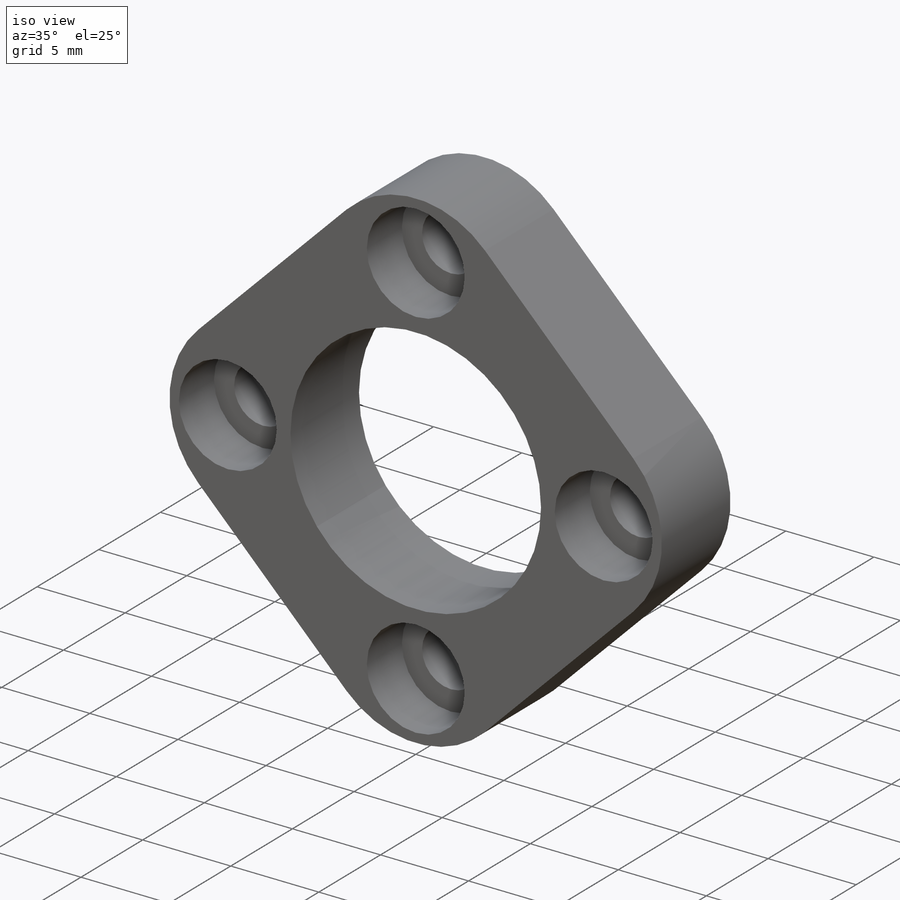
[diagram: iso view]
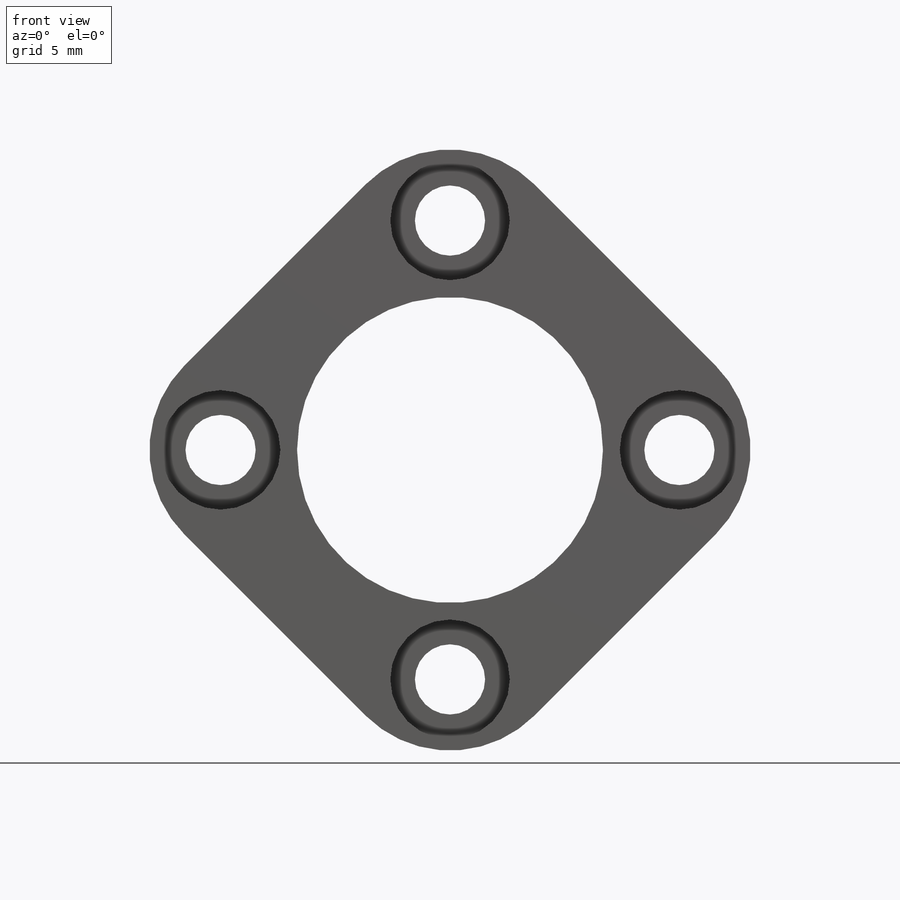
[diagram: front view]
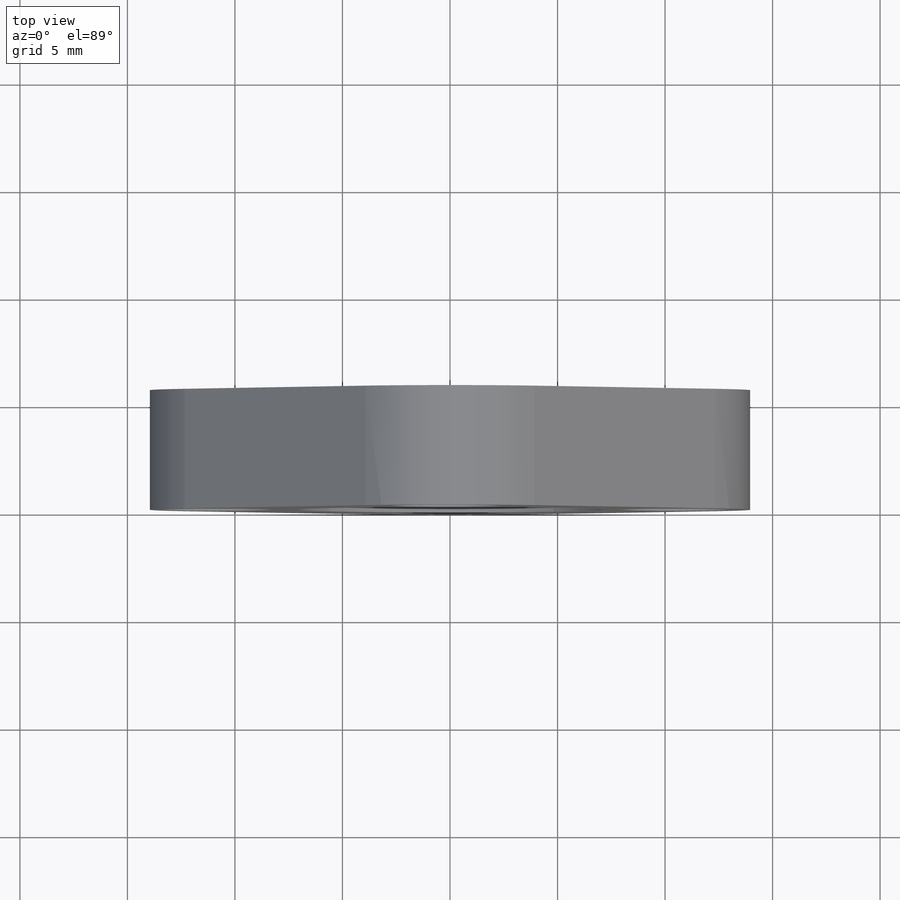
[diagram: top view]
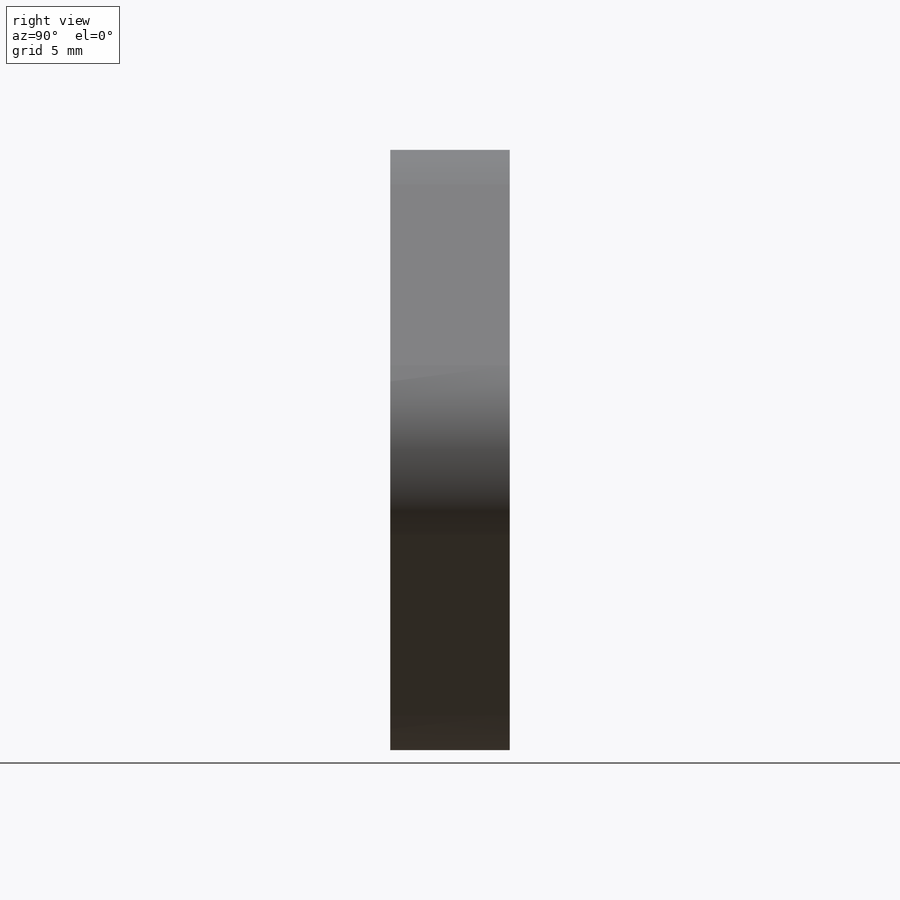
[diagram: right view]
SOLIDWORKS PART (.sldprt)
format: sldprt  version: not decoded by parser v0  size: 217,600 bytes
history: native  units: mm
features: sketch x4, material x1, extrude x1, cut_extrude x1, hole x1, pattern_circular x1, fillet x1 (+16 scaffold rows collapsed)
feature tree (26):
  scaffold x16  (default folders/planes/origin — collapsed)
  material  "6061-T6 Al"
  sketch  "Sketch1"  dims[c1.D1=25.4mm c1.D2=22.225mm c1.D3=22.225mm c2.D1=~18.911117mm c3.D1=90.0deg c3.D4=~31.430896mm c4.D1=~23.01875mm c4.D4=~23.01875mm]
  extrude  "Boss-Extrude1"  Depth=5.55625mm
  sketch  "Sketch2"  dims[D1=14.224mm]
  cut_extrude  "Cut-Extrude1"  [1 undecoded]
  hole  "CBORE for #4 Socket Head Cap Screw1"  Diameter=3.2639mm Depth=5.55625mm
  sketch  "Sketch4"  dims[D1=10.668mm]
  sketch  "Sketch3"  dims[hole-wizard template sketch: 42 standard entries collapsed; hole parameters kept: c12.Thru Hole Depth=~5.55625mm c12.C'Bore Dia.=~5.55752mm c12.C'Bore Depth=2.8448mm]
  pattern_circular  "CirPattern1"  Count=4 Angle=90deg
  fillet  "Fillet1"  Radius=5.55625mm
decode coverage: 8 of 9 modeling features carry decoded parameters
note: ~ marks probable driven/reference dimensions
note: 1 parameter value undecoded
note: suppression state not decoded; provenance and decode notes live in map.json
